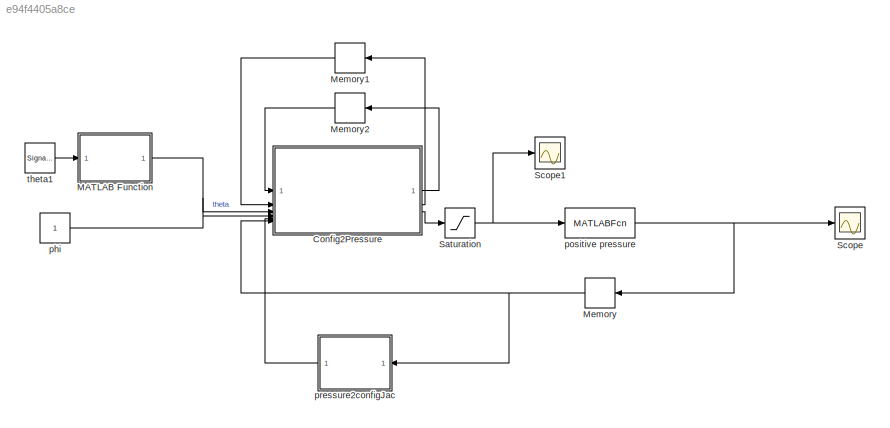
MODEL slx_e94f4405a8ce
KIND model
CONFIG AbsTol = auto
CONFIG EnableMultiTasking = off
CONFIG FixedStep = auto
CONFIG MaxStep = auto
CONFIG MinStep = auto
CONFIG RelTol = 1e-3
CONFIG SampleTimeConstraint = Unconstrained
CONFIG SolverName = VariableStepAuto
CONFIG StartTime = 0.0
CONFIG StopTime = 10.0
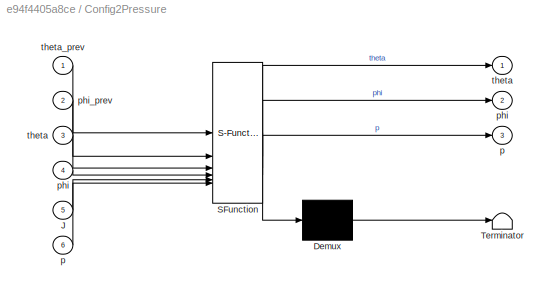
BLOCK [SubSystem] Config2Pressure
  ErrorFcn = Stateflow.Translate.translate
  PermitHierarchicalResolution = ExplicitOnly
  SFBlockType = MATLAB Function
  TreatAsAtomicUnit = on
BLOCK [Demux] Config2Pressure/ Demux 
  Outputs = 1
BLOCK [S-Function] Config2Pressure/ SFunction 
  EnableBusSupport = off
  FunctionName = sf_sfun
  PortCounts = [6 4]
  SFcnIsStateOwnerBlock = off
  SFunctionDeploymentMode = off
  Tag = Stateflow S-Function 2
BLOCK [Terminator] Config2Pressure/ Terminator 
BLOCK [Inport] Config2Pressure/J
  Port = 5
BLOCK [Outport] Config2Pressure/p
  Port = 3
BLOCK [Inport] Config2Pressure/p 
  Port = 6
BLOCK [Outport] Config2Pressure/phi
  Port = 2
BLOCK [Inport] Config2Pressure/phi 
  Port = 4
BLOCK [Inport] Config2Pressure/phi_prev
  Port = 2
BLOCK [Outport] Config2Pressure/theta
BLOCK [Inport] Config2Pressure/theta 
  Port = 3
BLOCK [Inport] Config2Pressure/theta_prev
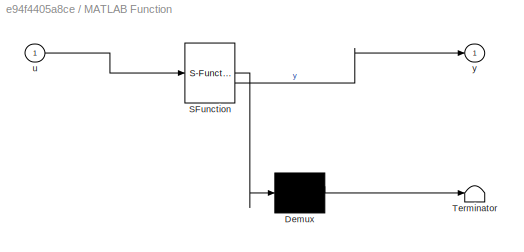
BLOCK [SubSystem] MATLAB Function
  ErrorFcn = Stateflow.Translate.translate
  PermitHierarchicalResolution = ExplicitOnly
  SFBlockType = MATLAB Function
  TreatAsAtomicUnit = on
BLOCK [Demux] MATLAB Function/ Demux 
  Outputs = 1
BLOCK [S-Function] MATLAB Function/ SFunction 
  EnableBusSupport = off
  FunctionName = sf_sfun
  PortCounts = [1 2]
  SFcnIsStateOwnerBlock = off
  SFunctionDeploymentMode = off
  Tag = Stateflow S-Function 10
BLOCK [Terminator] MATLAB Function/ Terminator 
BLOCK [Inport] MATLAB Function/u
BLOCK [Outport] MATLAB Function/y
BLOCK [Memory] Memory
  InheritSampleTime = on
  InitialCondition = [1.0;0.0;-1.0]
  NameLocation = top
BLOCK [Memory] Memory1
  InheritSampleTime = on
  NameLocation = top
BLOCK [Memory] Memory2
  InheritSampleTime = on
  NameLocation = top
BLOCK [Saturate] Saturation
  LowerLimit = -300000
  UpperLimit = 300000
BLOCK [Scope] Scope
  ActiveDisplayYMaximum = 337500
  ActiveDisplayYMinimum = -37499.999999999993
  Floating = off
  GraphicalSettings = {"Style":{"BackgroundColor":[0.12941176470588237,0.12941176470588237,0.12941176470588237],"AxesColor":[0.07058823529411765,0.07058823529411765,0.07058823529411765],"LabelsColor":[0.8509803921568627,0.8509803921568627,0.8509803921568627],"PreserveColors":false,"Visible":[true,true,true],"LineStyle":["-","-","-"],"LineWidth":[1.5,1.5,1.5],"BarWidth":[0.9,0.9,0.9],"LineColor":["auto","auto","auto"],"...<+2298ch>
  MultipleDisplayCache = [{"MaxYLimMag":337500,"MaxYLimReal":337500,"MinYLimMag":0,"MinYLimReal":-37499.999999999993,"PlotAsMagnitudePhase":false,"ShowGrid":true,"ShowLegend":false,"Title":"%<SignalLabel>","YLabel":""}]
  NumInputPorts = 1
  ScopeFrameLocation = window
  Visible = on
  WasSavedAsWebScope = on
  WindowPosition = [664.000000,490.000000,560.000000,420.000000,]
BLOCK [Scope] Scope1
  ActiveDisplayYMaximum = 6484.0279388846739
  ActiveDisplayYMinimum = -6484.0279388846739
  DataLoggingVariableName = ScopeData1
  Floating = off
  GraphicalSettings = {"Style":{"BackgroundColor":[0.12941176470588237,0.12941176470588237,0.12941176470588237],"AxesColor":[0.07058823529411765,0.07058823529411765,0.07058823529411765],"LabelsColor":[0.8509803921568627,0.8509803921568627,0.8509803921568627],"PreserveColors":false,"Visible":[true,true,true],"LineStyle":["-","-","-"],"LineWidth":[1.5,1.5,1.5],"BarWidth":[0.9,0.9,0.9],"LineColor":["auto","auto","auto"],"...<+2252ch>
  MultipleDisplayCache = [{"MaxYLimMag":6484.0279388846739,"MaxYLimReal":6484.0279388846739,"MinYLimMag":0,"MinYLimReal":-6484.0279388846739,"PlotAsMagnitudePhase":false,"ShowGrid":true,"ShowLegend":false,"Title":"%<SignalLabel>","YLabel":""}]
  NumInputPorts = 1
  ScopeFrameLocation = window
  Visible = on
  WasSavedAsWebScope = on
  WindowPosition = [1000.000000,510.000000,560.000000,420.000000,]
BLOCK [Constant] phi
BLOCK [MATLABFcn] positive pressure
  MATLABFcn = PositivePressures
  Output1D = off
  OutputDimensions = [3,1]
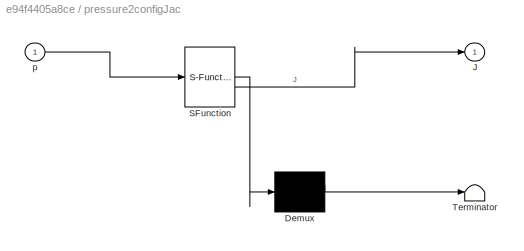
BLOCK [SubSystem] pressure2configJac
  ErrorFcn = Stateflow.Translate.translate
  NameLocation = top
  PermitHierarchicalResolution = ExplicitOnly
  SFBlockType = MATLAB Function
  TreatAsAtomicUnit = on
BLOCK [Demux] pressure2configJac/ Demux 
  Outputs = 1
BLOCK [S-Function] pressure2configJac/ SFunction 
  EnableBusSupport = off
  FunctionName = sf_sfun
  PortCounts = [1 2]
  SFcnIsStateOwnerBlock = off
  SFunctionDeploymentMode = off
  Tag = Stateflow S-Function 1
BLOCK [Terminator] pressure2configJac/ Terminator 
BLOCK [Outport] pressure2configJac/J
BLOCK [Inport] pressure2configJac/p
BLOCK [SignalGenerator] theta1
  Amplitude = pi
  Frequency = 0.5*2*pi
  Units = rad/sec
  VectorParams1D = off
  WaveForm = sawtooth
LINE Config2Pressure:1 -> Memory2:1
LINE Config2Pressure:2 -> Memory1:1
LINE Config2Pressure:3 -> Saturation:1
LINE MATLAB Function:1 -> Config2Pressure:3
LINE Memory1:1 -> Config2Pressure:2
LINE Memory2:1 -> Config2Pressure:1
NET Memory:1 -> Config2Pressure:6, pressure2configJac:1
NET Saturation:1 -> Scope1:1, positive pressure:1
LINE phi:1 -> Config2Pressure:4
NET positive pressure:1 -> Memory:1, Scope:1
LINE pressure2configJac:1 -> Config2Pressure:5
LINE theta1:1 -> MATLAB Function:1
note: NET lines group one-source signal fan-out (src -> all destinations, sorted); 1:1 wires keep LINE
CHART pressure2configJac states=1 transitions=1
  STATE_LABEL 'eML_blk_kernel()'
  STATE_LABEL 'SCRIPT:\nfunction J = Jacobian(p)\n\nr = 0.013;\nK = 0.0155;\nA = pi*(0.013/2)^2;\n\nJ = pressure2configJacobian(p, r, K, A);\n\nend\n'
CHART Config2Pressure states=1 transitions=1
  STATE_LABEL 'eML_blk_kernel()'
  STATE_LABEL 'SCRIPT:\nfunction [theta, phi, p] = Configuration2Pressure(theta_prev, phi_prev, theta, phi, J, p)\n\n% persistent theta_prev phi_prev;\n% \n% if isempty(theta_prev)\n%     theta_prev = 0.0;\n% end\n% \n% if isempty(phi_prev)\n%     phi_prev = 0.0;\n% end\n\ndp = J \\ ([theta; phi]-[theta_prev; phi_prev]);\n\n% theta_prev = theta;\n% phi_prev = phi;\n\np = reshape(p,[3,1]);\np = p + [-(dp(1)+dp(2)); dp(1); dp(2)];\n\ne...<+3ch>'
CHART MATLAB Function states=1 transitions=1
  STATE_LABEL 'eML_blk_kernel()'
  STATE_LABEL 'SCRIPT:\nfunction y = fcn(u)\n\ny = wrapToPi(u - pi);\n'
CHART  states=0 transitions=0
CHART  states=0 transitions=0
CHART  states=0 transitions=0
